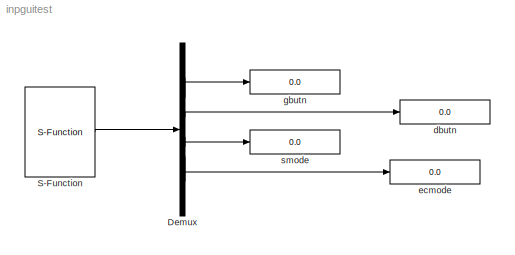
MODEL inpguitest
KIND model
BLOCK [Demux] Demux
  DisplayOption = bar
  Ports = [1, 4]
  SID = 1
BLOCK [S-Function] S-Function
  EnableBusSupport = off
  FunctionName = inpgui_sf
  Parameters = 0.005
  Ports = [0, 1]
  SFcnIsStateOwnerBlock = off
  SFunctionDeploymentMode = off
  SID = 2
BLOCK [Display] dbutn
  Decimation = 1
  Ports = [1]
  SID = 3
BLOCK [Display] ecmode
  Decimation = 1
  Ports = [1]
  SID = 4
BLOCK [Display] gbutn
  Decimation = 1
  Ports = [1]
  SID = 5
BLOCK [Display] smode
  Decimation = 1
  Ports = [1]
  SID = 6
LINE Demux:1 -> gbutn:1
LINE Demux:2 -> dbutn:1
LINE Demux:3 -> smode:1
LINE Demux:4 -> ecmode:1
LINE S-Function:1 -> Demux:1
